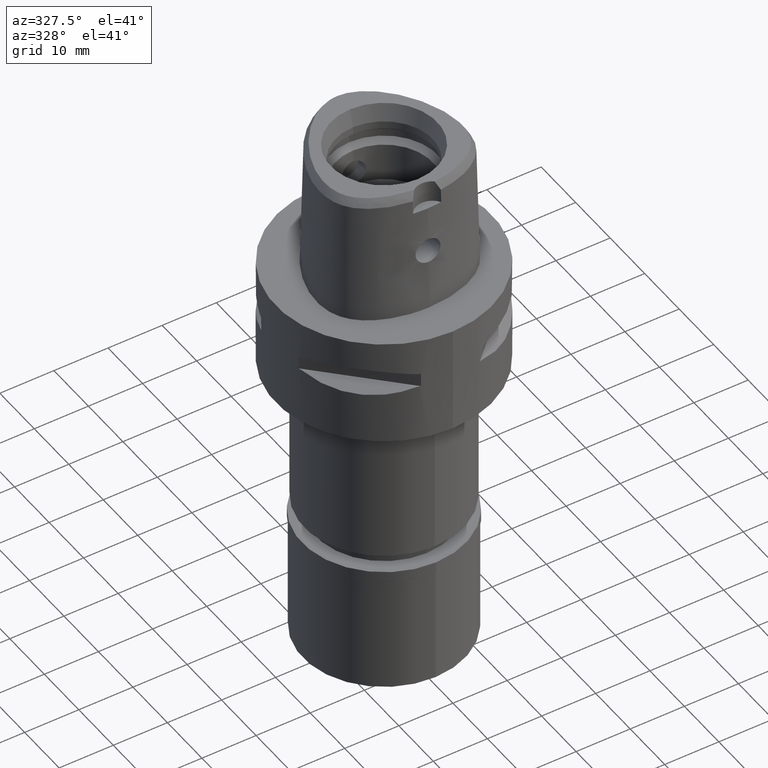
[diagram: clean part render]
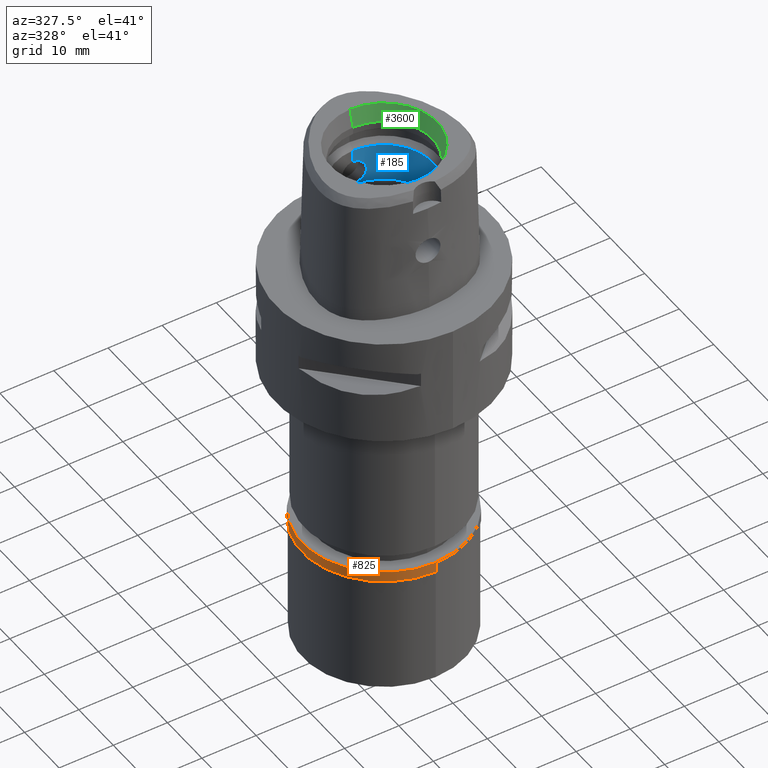
[diagram: same view with three faces highlighted in distinct colors, each labeled with its STEP entity id]
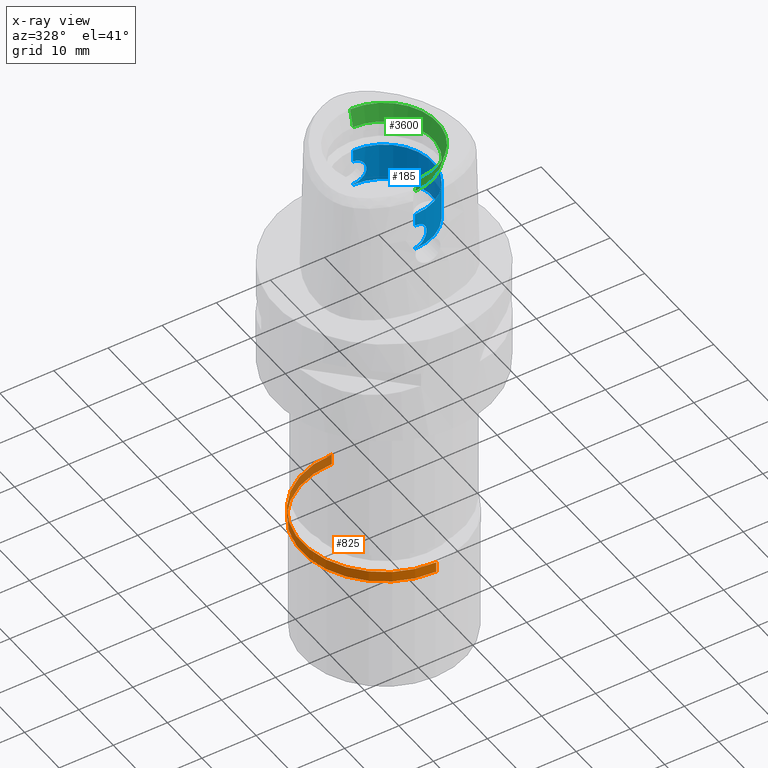
[diagram: x-ray of the same camera — body ghosted, the three highlighted faces saturated]
A machine part, auxiliary view with three faces highlighted in distinct colors.
The next image is the same camera in x-ray (body ghosted, the three faces saturated) — at least one of them is partly hidden behind the body in this view.
Their STEP definitions:

[orange] entity #825 — the highlighted cylindrical surface (partial cylindrical patch) has radius 15.15 mm, axis along (0, 0, -1).
#91 = CIRCLE ( 'NONE', #3687, 15.15000000000000036 ) ;
#99 = DIRECTION ( 'NONE',  ( 0.0000000000000000000, -1.000000000000000000, 0.0000000000000000000 ) ) ;
#107 = CARTESIAN_POINT ( 'NONE',  ( 0.0000000000000000000, 15.15000000000000036, -1.949999999999999956 ) ) ;
#140 = CARTESIAN_POINT ( 'NONE',  ( 0.0000000000000000000, -15.15000000000000036, 0.0000000000000000000 ) ) ;
#203 = DIRECTION ( 'NONE',  ( 0.0000000000000000000, 0.0000000000000000000, 1.000000000000000000 ) ) ;
#317 = LINE ( 'NONE', #3247, #1561 ) ;
#488 = CARTESIAN_POINT ( 'NONE',  ( 0.0000000000000000000, 0.0000000000000000000, -1.949999999999999956 ) ) ;
#546 = ORIENTED_EDGE ( 'NONE', *, *, #2425, .T. ) ;
#630 = CYLINDRICAL_SURFACE ( 'NONE', #3725, 15.15000000000000036 ) ;
#666 = ORIENTED_EDGE ( 'NONE', *, *, #735, .T. ) ;
#735 = EDGE_CURVE ( 'NONE', #4123, #1456, #3269, .T. ) ;
#825 = ADVANCED_FACE ( 'NONE', ( #2858 ), #630, .T. ) ;
#1070 = DIRECTION ( 'NONE',  ( 0.0000000000000000000, 0.0000000000000000000, -1.000000000000000000 ) ) ;
#1197 = EDGE_CURVE ( 'NONE', #1725, #4123, #1433, .T. ) ;
#1433 = LINE ( 'NONE', #2895, #3669 ) ;
#1450 = EDGE_LOOP ( 'NONE', ( #666, #3352, #546, #2197 ) ) ;
#1456 = VERTEX_POINT ( 'NONE', #2216 ) ;
#1537 = DIRECTION ( 'NONE',  ( 0.0000000000000000000, 0.0000000000000000000, -1.000000000000000000 ) ) ;
#1561 = VECTOR ( 'NONE', #1537, 1000.000000000000000 ) ;
#1725 = VERTEX_POINT ( 'NONE', #2698 ) ;
#2065 = DIRECTION ( 'NONE',  ( 0.0000000000000000000, -1.000000000000000000, 0.0000000000000000000 ) ) ;
#2197 = ORIENTED_EDGE ( 'NONE', *, *, #1197, .T. ) ;
#2216 = CARTESIAN_POINT ( 'NONE',  ( 0.0000000000000000000, -15.15000000000000036, -1.949999999999999956 ) ) ;
#2425 = EDGE_CURVE ( 'NONE', #3061, #1725, #91, .T. ) ;
#2698 = CARTESIAN_POINT ( 'NONE',  ( 0.0000000000000000000, 15.15000000000000036, 0.0000000000000000000 ) ) ;
#2858 = FACE_OUTER_BOUND ( 'NONE', #1450, .T. ) ;
#2895 = CARTESIAN_POINT ( 'NONE',  ( 0.0000000000000000000, 15.15000000000000036, 0.0000000000000000000 ) ) ;
#3061 = VERTEX_POINT ( 'NONE', #140 ) ;
#3080 = DIRECTION ( 'NONE',  ( 0.0000000000000000000, 1.000000000000000000, 0.0000000000000000000 ) ) ;
#3247 = CARTESIAN_POINT ( 'NONE',  ( 0.0000000000000000000, -15.15000000000000036, 0.0000000000000000000 ) ) ;
#3269 = CIRCLE ( 'NONE', #3649, 15.15000000000000036 ) ;
#3352 = ORIENTED_EDGE ( 'NONE', *, *, #3437, .F. ) ;
#3437 = EDGE_CURVE ( 'NONE', #3061, #1456, #317, .T. ) ;
#3597 = CARTESIAN_POINT ( 'NONE',  ( 0.0000000000000000000, 0.0000000000000000000, 0.0000000000000000000 ) ) ;
#3649 = AXIS2_PLACEMENT_3D ( 'NONE', #488, #203, #3080 ) ;
#3669 = VECTOR ( 'NONE', #1070, 1000.000000000000000 ) ;
#3687 = AXIS2_PLACEMENT_3D ( 'NONE', #4458, #4101, #99 ) ;
#3725 = AXIS2_PLACEMENT_3D ( 'NONE', #3597, #4273, #2065 ) ;
#4101 = DIRECTION ( 'NONE',  ( 0.0000000000000000000, 0.0000000000000000000, -1.000000000000000000 ) ) ;
#4123 = VERTEX_POINT ( 'NONE', #107 ) ;
#4273 = DIRECTION ( 'NONE',  ( 0.0000000000000000000, 0.0000000000000000000, -1.000000000000000000 ) ) ;
#4458 = CARTESIAN_POINT ( 'NONE',  ( 0.0000000000000000000, 0.0000000000000000000, 0.0000000000000000000 ) ) ;

[blue] entity #185 — the highlighted cylindrical surface (partial cylindrical patch) has radius 9 mm, axis along (0, 0, -1).
#3 = CARTESIAN_POINT ( 'NONE',  ( 2.287132990064632221, -8.704769236788072462, 11.21501786458138561 ) ) ;
#5 = ORIENTED_EDGE ( 'NONE', *, *, #4277, .T. ) ;
#49 = CARTESIAN_POINT ( 'NONE',  ( 0.9357169051279935479, -8.951185587024610868, 9.398812534362566140 ) ) ;
#67 = CARTESIAN_POINT ( 'NONE',  ( 0.0000000000000000000, 1.533257792532000136E-14, 25.19999999999999929 ) ) ;
#76 = CARTESIAN_POINT ( 'NONE',  ( 0.0000000000000000000, -9.000000000000000000, 13.79999999999999893 ) ) ;
#97 = CARTESIAN_POINT ( 'NONE',  ( 0.0000000000000000000, -9.000000000000000000, 9.199999999999999289 ) ) ;
#123 = CARTESIAN_POINT ( 'NONE',  ( 1.556137702457962790, 8.864439187158151157, 9.806195497710369580 ) ) ;
#127 = CARTESIAN_POINT ( 'NONE',  ( 1.339490234439705274, 8.899746063489176962, 13.36976547358360179 ) ) ;
#146 = CARTESIAN_POINT ( 'NONE',  ( 0.8374005472549581608, 8.960904913302332631, 9.357838374672851955 ) ) ;
#150 = CARTESIAN_POINT ( 'NONE',  ( 1.043225307877940766, 8.939340670437045944, 13.55015363775863690 ) ) ;
#170 = CARTESIAN_POINT ( 'NONE',  ( 1.255845283586865202, 8.911951536965279530, 9.573116896761840522 ) ) ;
#174 = CARTESIAN_POINT ( 'NONE',  ( 1.703395452306719626, 8.837626184156086140, 13.04870496503829713 ) ) ;
#185 = ADVANCED_FACE ( 'NONE', ( #2769 ), #1190, .F. ) ;
#193 = EDGE_CURVE ( 'NONE', #1169, #1746, #3055, .T. ) ;
#195 = CARTESIAN_POINT ( 'NONE',  ( 0.5806353631788452319, 8.981374052987712631, 9.273176414460557737 ) ) ;
#219 = ORIENTED_EDGE ( 'NONE', *, *, #3283, .F. ) ;
#220 = CARTESIAN_POINT ( 'NONE',  ( 2.245285359341062659, 8.715647387226118425, 12.00422526779594534 ) ) ;
#238 = CARTESIAN_POINT ( 'NONE',  ( 1.887477268085393289, 8.799866990472203554, 10.18556252931095685 ) ) ;
#243 = CARTESIAN_POINT ( 'NONE',  ( 0.0000000000000000000, -9.000000000000000000, 13.79999999999999893 ) ) ;
#268 = CARTESIAN_POINT ( 'NONE',  ( 1.490617208675725891, -8.875697753736783824, 13.25213021035993499 ) ) ;
#289 = CARTESIAN_POINT ( 'NONE',  ( 1.703357336630821006, -8.837633475453978704, 9.951254144140834867 ) ) ;
#309 = CARTESIAN_POINT ( 'NONE',  ( 1.562217327624282115, -8.863668096923680295, 9.808989366217517158 ) ) ;
#340 = CARTESIAN_POINT ( 'NONE',  ( 2.112927675227552093, -8.748515381573492178, 12.40863218411026736 ) ) ;
#360 = CARTESIAN_POINT ( 'NONE',  ( 2.072739825257189583, -8.758195903675449756, 10.50030056291258518 ) ) ;
#407 = CARTESIAN_POINT ( 'NONE',  ( 1.285286320555083517, -8.907758574497094628, 9.592628597585536099 ) ) ;
#448 = DIRECTION ( 'NONE',  ( 0.0000000000000000000, 0.0000000000000000000, 1.000000000000000000 ) ) ;
#506 = CARTESIAN_POINT ( 'NONE',  ( 2.300029124036677253, 8.701135784595216194, 11.63992761485882532 ) ) ;
#507 = CARTESIAN_POINT ( 'NONE',  ( 0.6909482788829833799, -8.973388700834629361, 13.69409681312240501 ) ) ;
#529 = CARTESIAN_POINT ( 'NONE',  ( 1.003437889925338888, -8.944085470636485624, 13.57094237662369274 ) ) ;
#561 = CARTESIAN_POINT ( 'NONE',  ( 0.0000000000000000000, -9.000000000000000000, 9.000000000000000000 ) ) ;
#577 = CARTESIAN_POINT ( 'NONE',  ( 1.103513926562659675, 8.932119617251970567, 9.481664286371652040 ) ) ;
#599 = CARTESIAN_POINT ( 'NONE',  ( 1.958507268155720293, 8.784433518659399809, 10.29123378001158606 ) ) ;
#626 = CARTESIAN_POINT ( 'NONE',  ( 1.919696485015929266, -8.792873908421162454, 10.23320296647237626 ) ) ;
#651 = CARTESIAN_POINT ( 'NONE',  ( 1.905885170425802855, -8.795876688207547645, 12.78748247549850170 ) ) ;
#672 = CARTESIAN_POINT ( 'NONE',  ( 2.153763615302764833, -8.738558560392213792, 10.69255182651608393 ) ) ;
#692 = CARTESIAN_POINT ( 'NONE',  ( 1.827585697699192213, -8.812600102160176974, 12.89691224378626799 ) ) ;
#703 = VERTEX_POINT ( 'NONE', #561 ) ;
#716 = CARTESIAN_POINT ( 'NONE',  ( 2.177169982511784507, -8.732798443225833651, 10.75664385977380988 ) ) ;
#787 = CARTESIAN_POINT ( 'NONE',  ( 1.144142947517637898, -8.927204976047894647, 9.503319663901351078 ) ) ;
#802 = DIRECTION ( 'NONE',  ( 0.0000000000000000000, -1.000000000000000000, 0.0000000000000000000 ) ) ;
#820 = CARTESIAN_POINT ( 'NONE',  ( 0.0000000000000000000, -9.000000000000000000, 9.199999999999999289 ) ) ;
#829 = CARTESIAN_POINT ( 'NONE',  ( 0.9931848985290840925, -8.945074307746335052, 9.424934585418821342 ) ) ;
#857 = CARTESIAN_POINT ( 'NONE',  ( 2.020546764137273854, 8.770310066920133707, 12.59945607755874164 ) ) ;
#881 = CARTESIAN_POINT ( 'NONE',  ( 0.8880796753691441170, 8.956014764074060608, 13.62165326822098521 ) ) ;
#882 = CARTESIAN_POINT ( 'NONE',  ( 0.7460393360806082397, -8.969064364720249927, 13.67625161466789585 ) ) ;
#902 = CARTESIAN_POINT ( 'NONE',  ( 0.0000000000000000000, 9.000000000000000000, 9.199999999999999289 ) ) ;
#905 = CARTESIAN_POINT ( 'NONE',  ( 1.291990342421216020, 8.906786232752297749, 13.40283267207491846 ) ) ;
#906 = CARTESIAN_POINT ( 'NONE',  ( 1.103590238054898753, -8.932110166292584807, 13.51829409849712960 ) ) ;
#934 = CARTESIAN_POINT ( 'NONE',  ( 2.177242703538515123, 8.732780537221536576, 12.24314351657900701 ) ) ;
#957 = CARTESIAN_POINT ( 'NONE',  ( 1.589988290054959563, 8.858448407607829367, 9.837930362928231531 ) ) ;
#960 = CARTESIAN_POINT ( 'NONE',  ( 2.102789545940028315, 8.750987946164515918, 12.43430839225484164 ) ) ;
#981 = CARTESIAN_POINT ( 'NONE',  ( 1.937531917454499153, -8.788966115894860209, 10.26058449488289881 ) ) ;
#983 = AXIS2_PLACEMENT_3D ( 'NONE', #1550, #448, #1905 ) ;
#1005 = CARTESIAN_POINT ( 'NONE',  ( 1.923653982155014486, -8.792009372543123646, 10.23921397070271233 ) ) ;
#1029 = CARTESIAN_POINT ( 'NONE',  ( 2.131785812865778507, -8.743929749607247004, 10.63654069758858967 ) ) ;
#1046 = B_SPLINE_CURVE_WITH_KNOTS ( 'NONE', 3,
 ( #902, #1219, #3116, #3138, #195, #1961, #4578, #3429, #146, #3046, #2779, #4531, #1296, #577, #2418, #4600, #3452, #170, #3834, #1606, #3068, #2033, #1319, #4243, #3091, #123, #957, #1580, #1245, #2729, #2684, #2707, #4191, #238, #1702, #3161, #2057, #3525, #599, #3140, #3071, #2328, #3867, #2783, #2349, #4603, #1984, #2007, #506, #1223, #220, #2420, #3412, #934, #1323, #4149, #2754, #4581, #960, #2732, #857, #2036, #3455, #1942, #4507, #1247, #4247, #3890, #1608, #3789, #174, #4219, #4534, #1679, #4194, #127, #1273, #1963, #905, #2687, #3119, #1299, #3432, #150, #1633, #3481, #2399, #4173, #881, #2710, #4557, #3050 ),
 .UNSPECIFIED., .F., .F.,
 ( 4, 2, 2, 1, 1, 2, 2, 2, 1, 1, 1, 2, 2, 2, 2, 2, 2, 2, 2, 1, 1, 2, 2, 2, 1, 1, 2, 2, 2, 2, 2, 1, 1, 2, 2, 2, 1, 1, 1, 2, 2, 2, 2, 2, 2, 1, 1, 2, 2, 2, 1, 1, 2, 2, 4 ),
 ( 0.0000000000000000000, 0.06249999999998009925, 0.09374999999997009337, 0.1093749999999649725, 0.1171874999999623773, 0.1210937499999611144, 0.1249999999999598377, 0.1562499999999507616, 0.1718749999999463207, 0.1796874999999439060, 0.1835937499999424627, 0.1855468749999419353, 0.1874999999999414357, 0.2187499999999362177, 0.2343749999999338307, 0.2421874999999326927, 0.2499999999999315548, 0.2812499999999280020, 0.2968749999999263922, 0.3046874999999256151, 0.3085937499999248379, 0.3105468749999245048, 0.3124999999999241163, 0.3437499999999235611, 0.3593749999999236167, 0.3671874999999239497, 0.3710937499999240607, 0.3749999999999242273, 0.4999999999999337197, 0.5624999999999389377, 0.5937499999999414912, 0.6093749999999430456, 0.6171874999999434896, 0.6210937499999433786, 0.6249999999999431566, 0.6562499999999440448, 0.6718749999999444888, 0.6796874999999444888, 0.6835937499999447109, 0.6855468749999449329, 0.6874999999999450440, 0.7187499999999477085, 0.7499999999999502620, 0.7812499999999528155, 0.7968749999999544809, 0.8046874999999554801, 0.8085937499999558131, 0.8105468749999559241, 0.8124999999999561462, 0.8437499999999629186, 0.8593749999999664713, 0.8671874999999684697, 0.8710937499999694689, 0.8749999999999703570, 1.000000000000000000 ),
 .UNSPECIFIED. ) ;
#1051 = CARTESIAN_POINT ( 'NONE',  ( 1.698461463642668257, -8.838602943485954100, 13.05437228606658273 ) ) ;
#1062 = B_SPLINE_CURVE_WITH_KNOTS ( 'NONE', 3,
 ( #243, #1248, #1706, #4628, #4150, #507, #882, #3433, #1964, #2350, #3813, #1274, #529, #906, #1751, #3264, #1727, #1074, #1438, #2518, #3938, #2544, #2130, #268, #1778, #2085, #3987, #4010, #1051, #4648, #692, #3189, #1368, #3914, #3643, #651, #1416, #2154, #3286, #4365, #3211, #3619, #3551, #340, #1803, #2900, #4718, #2877, #4667, #3, #4342, #3240, #2108, #716, #672, #2829, #2180, #1029, #4269, #360, #4291, #1823, #2807, #981, #2447, #1005, #626, #2473, #3570, #1392, #289, #309, #2853, #2496, #4693, #4318, #3963, #3593, #2923, #3308, #407, #3405, #787, #2568, #829, #49, #4390, #3667, #3692, #3330, #3022, #97 ),
 .UNSPECIFIED., .F., .F.,
 ( 4, 2, 2, 1, 1, 2, 2, 2, 1, 1, 1, 2, 2, 2, 2, 2, 2, 2, 2, 1, 1, 2, 2, 2, 1, 1, 2, 2, 2, 2, 2, 1, 1, 2, 2, 2, 1, 1, 1, 2, 2, 2, 2, 2, 2, 1, 1, 2, 2, 2, 1, 1, 2, 2, 4 ),
 ( 0.0000000000000000000, 0.06250000000000743849, 0.09375000000001114386, 0.1093750000000128786, 0.1171875000000137113, 0.1210937500000140166, 0.1250000000000143219, 0.1562500000000160150, 0.1718750000000166811, 0.1796875000000168199, 0.1835937500000170974, 0.1855468750000172085, 0.1875000000000172917, 0.2187500000000192069, 0.2343750000000204003, 0.2421875000000210387, 0.2500000000000217049, 0.2812500000000254796, 0.2968750000000270339, 0.3046875000000274225, 0.3085937500000280886, 0.3105468750000279776, 0.3125000000000278666, 0.3437500000000237033, 0.3593750000000219269, 0.3671875000000210942, 0.3710937500000206501, 0.3750000000000201505, 0.5000000000000091038, 0.5625000000000041078, 0.5937500000000015543, 0.6093750000000003331, 0.6171874999999994449, 0.6210937499999993339, 0.6249999999999992228, 0.6562499999999992228, 0.6718749999999992228, 0.6796874999999990008, 0.6835937499999985567, 0.6855468749999983347, 0.6874999999999981126, 0.7187499999999978906, 0.7499999999999977796, 0.7812499999999975575, 0.7968749999999973355, 0.8046874999999974465, 0.8085937499999974465, 0.8105468749999974465, 0.8124999999999974465, 0.8437499999999994449, 0.8593750000000003331, 0.8671875000000006661, 0.8710937500000007772, 0.8750000000000008882, 1.000000000000000000 ),
 .UNSPECIFIED. ) ;
#1074 = CARTESIAN_POINT ( 'NONE',  ( 1.255942053509135903, -8.911937898533313529, 13.42682003222394194 ) ) ;
#1134 = AXIS2_PLACEMENT_3D ( 'NONE', #67, #2636, #802 ) ;
#1162 = CARTESIAN_POINT ( 'NONE',  ( 0.0000000000000000000, 9.000000000000000000, 9.000000000000000000 ) ) ;
#1169 = VERTEX_POINT ( 'NONE', #2102 ) ;
#1172 = VECTOR ( 'NONE', #4157, 1000.000000000000000 ) ;
#1180 = VECTOR ( 'NONE', #3096, 1000.000000000000000 ) ;
#1190 = CYLINDRICAL_SURFACE ( 'NONE', #1134, 9.000000000000000000 ) ;
#1219 = CARTESIAN_POINT ( 'NONE',  ( 0.1414332686010233153, 8.999999999999998224, 9.199999999999995737 ) ) ;
#1223 = CARTESIAN_POINT ( 'NONE',  ( 2.287169262344413756, 8.704759722416335777, 11.78470094416381286 ) ) ;
#1245 = CARTESIAN_POINT ( 'NONE',  ( 1.698335872418372139, 8.838627239415616899, 9.945489560875191870 ) ) ;
#1247 = CARTESIAN_POINT ( 'NONE',  ( 1.923721292558522089, 8.791994767221938289, 12.76068332765383495 ) ) ;
#1248 = CARTESIAN_POINT ( 'NONE',  ( 0.1414394572719149812, -9.000000000000003553, 13.80000000000000249 ) ) ;
#1273 = CARTESIAN_POINT ( 'NONE',  ( 1.320804435486462092, 8.902557837978584132, 13.38303979007599054 ) ) ;
#1274 = CARTESIAN_POINT ( 'NONE',  ( 0.9377720271860214840, -8.951192132945880786, 13.60127452723740937 ) ) ;
#1296 = CARTESIAN_POINT ( 'NONE',  ( 1.003375303522020312, 8.944092505824571049, 9.429027726795055742 ) ) ;
#1299 = CARTESIAN_POINT ( 'NONE',  ( 1.212468344400696507, 8.918232905176987302, 13.45620263016217244 ) ) ;
#1319 = CARTESIAN_POINT ( 'NONE',  ( 1.459165974735790128, 8.880900083959863522, 9.721721923061821258 ) ) ;
#1323 = CARTESIAN_POINT ( 'NONE',  ( 2.153839850532570210, 8.738540012296835968, 12.30724488745274314 ) ) ;
#1368 = CARTESIAN_POINT ( 'NONE',  ( 1.875102035805660039, -8.802528531856413707, 12.83200180528761081 ) ) ;
#1392 = CARTESIAN_POINT ( 'NONE',  ( 1.762349335927701821, -8.825982146228179559, 10.02019725376149140 ) ) ;
#1416 = CARTESIAN_POINT ( 'NONE',  ( 1.909312241721613512, -8.795131996938511776, 12.78239470178909443 ) ) ;
#1438 = CARTESIAN_POINT ( 'NONE',  ( 1.264453099398634262, -8.910734439179687882, 13.42124549128251410 ) ) ;
#1504 = ORIENTED_EDGE ( 'NONE', *, *, #2971, .T. ) ;
#1513 = CARTESIAN_POINT ( 'NONE',  ( 0.0000000000000000000, -9.000000000000000000, 13.79999999999999893 ) ) ;
#1550 = CARTESIAN_POINT ( 'NONE',  ( 0.0000000000000000000, 1.427938167806000271E-14, 16.10000000000000142 ) ) ;
#1580 = CARTESIAN_POINT ( 'NONE',  ( 1.606180430752902621, 8.855537364755658558, 9.853530325538274681 ) ) ;
#1593 = DIRECTION ( 'NONE',  ( 0.0000000000000000000, 0.0000000000000000000, 1.000000000000000000 ) ) ;
#1606 = CARTESIAN_POINT ( 'NONE',  ( 1.270096494061585313, 8.909931030217613568, 9.582484427444571295 ) ) ;
#1608 = CARTESIAN_POINT ( 'NONE',  ( 1.855587326000626591, 8.806834445933052535, 12.86106174105149513 ) ) ;
#1633 = CARTESIAN_POINT ( 'NONE',  ( 0.9931669881046227832, 8.945076297695257139, 13.57507403465581142 ) ) ;
#1639 = EDGE_CURVE ( 'NONE', #2123, #2416, #4445, .T. ) ;
#1679 = CARTESIAN_POINT ( 'NONE',  ( 1.406369887744473024, 8.889417872726765424, 13.32032241180387722 ) ) ;
#1702 = CARTESIAN_POINT ( 'NONE',  ( 1.900487608784264815, 8.797048592149586455, 10.20453997196187856 ) ) ;
#1706 = CARTESIAN_POINT ( 'NONE',  ( 0.2869275326283063920, -8.996451826777951410, 13.78691779590542943 ) ) ;
#1727 = CARTESIAN_POINT ( 'NONE',  ( 1.243178911795196795, -8.913732811697506975, 13.43511907350839074 ) ) ;
#1746 = VERTEX_POINT ( 'NONE', #3492 ) ;
#1751 = CARTESIAN_POINT ( 'NONE',  ( 1.154075757097644539, -8.925793686400686155, 13.49018298282967265 ) ) ;
#1778 = CARTESIAN_POINT ( 'NONE',  ( 1.539604599951793995, -8.867313454296095188, 13.20882786143640431 ) ) ;
#1803 = CARTESIAN_POINT ( 'NONE',  ( 2.119746319327764361, -8.746865041111790973, 12.39260929215413043 ) ) ;
#1823 = CARTESIAN_POINT ( 'NONE',  ( 1.992508994345695728, -8.776729813503461486, 10.34994354242991399 ) ) ;
#1848 = VECTOR ( 'NONE', #1593, 1000.000000000000000 ) ;
#1897 = DIRECTION ( 'NONE',  ( 0.0000000000000000000, 0.0000000000000000000, -1.000000000000000000 ) ) ;
#1905 = DIRECTION ( 'NONE',  ( 0.0000000000000000000, -1.000000000000000000, 0.0000000000000000000 ) ) ;
#1932 = VERTEX_POINT ( 'NONE', #820 ) ;
#1942 = CARTESIAN_POINT ( 'NONE',  ( 1.937600561039689806, 8.788951117061536422, 12.73930821688134074 ) ) ;
#1961 = CARTESIAN_POINT ( 'NONE',  ( 0.6909134741020581671, 8.973391504268159125, 9.305892266130404877 ) ) ;
#1963 = CARTESIAN_POINT ( 'NONE',  ( 1.300417651653735351, 8.905559522219668622, 13.39710207156761435 ) ) ;
#1964 = CARTESIAN_POINT ( 'NONE',  ( 0.8374433756606519674, -8.960900794299208272, 13.64214488543472825 ) ) ;
#1984 = CARTESIAN_POINT ( 'NONE',  ( 2.247181623742872336, 8.715881470142798904, 10.91623456125771341 ) ) ;
#2007 = CARTESIAN_POINT ( 'NONE',  ( 2.299941602979093336, 8.701167487288063995, 11.21871107708622795 ) ) ;
#2033 = CARTESIAN_POINT ( 'NONE',  ( 1.370034635968938597, 8.895244962172609959, 9.651011590293784081 ) ) ;
#2034 = ORIENTED_EDGE ( 'NONE', *, *, #3807, .F. ) ;
#2036 = CARTESIAN_POINT ( 'NONE',  ( 1.992582494425632067, 8.776713322919977855, 12.64992954828725580 ) ) ;
#2057 = CARTESIAN_POINT ( 'NONE',  ( 1.909158358357111007, 8.795165259540548064, 10.21737622222637931 ) ) ;
#2085 = CARTESIAN_POINT ( 'NONE',  ( 1.556258811771126460, -8.864417823802344998, 13.19369334312456488 ) ) ;
#2102 = CARTESIAN_POINT ( 'NONE',  ( 0.0000000000000000000, -9.000000000000000000, 16.10000000000000142 ) ) ;
#2108 = CARTESIAN_POINT ( 'NONE',  ( 2.194942066035532324, -8.728372154003007921, 10.81174319377279325 ) ) ;
#2123 = VERTEX_POINT ( 'NONE', #4087 ) ;
#2130 = CARTESIAN_POINT ( 'NONE',  ( 1.459263900345196818, -8.880883830643142574, 13.27819786446664629 ) ) ;
#2154 = CARTESIAN_POINT ( 'NONE',  ( 1.909754891091663076, -8.795035831871812704, 12.78174220572022257 ) ) ;
#2180 = CARTESIAN_POINT ( 'NONE',  ( 2.135951545452911216, -8.742914213659682687, 10.64688376812441639 ) ) ;
#2223 = VECTOR ( 'NONE', #3753, 1000.000000000000000 ) ;
#2265 = LINE ( 'NONE', #4470, #1848 ) ;
#2283 = CARTESIAN_POINT ( 'NONE',  ( 0.0000000000000000000, 1.533257792532000136E-14, 9.000000000000000000 ) ) ;
#2328 = CARTESIAN_POINT ( 'NONE',  ( 2.076588996256092390, 8.757239265836171072, 10.51002628681138695 ) ) ;
#2349 = CARTESIAN_POINT ( 'NONE',  ( 2.119618309044795090, 8.746895874843161778, 10.60708678664825655 ) ) ;
#2350 = CARTESIAN_POINT ( 'NONE',  ( 0.8556747885966007328, -8.959182147894775738, 13.63492781465608594 ) ) ;
#2399 = CARTESIAN_POINT ( 'NONE',  ( 0.9112882096314763869, 8.953682610253693497, 13.61178397668112794 ) ) ;
#2416 = VERTEX_POINT ( 'NONE', #4270 ) ;
#2418 = CARTESIAN_POINT ( 'NONE',  ( 1.153992557307253364, 8.925804429162466747, 9.509768992773125262 ) ) ;
#2420 = CARTESIAN_POINT ( 'NONE',  ( 2.227564533388770140, 8.720185235175739180, 12.07778027841114543 ) ) ;
#2447 = CARTESIAN_POINT ( 'NONE',  ( 1.929231123482783472, -8.790787858489757411, 10.24776466791684371 ) ) ;
#2473 = CARTESIAN_POINT ( 'NONE',  ( 1.891056123125643751, -8.799121521649569289, 10.18992659143200719 ) ) ;
#2496 = CARTESIAN_POINT ( 'NONE',  ( 1.406369410364366912, -8.889418038753191809, 9.679677300357578673 ) ) ;
#2518 = CARTESIAN_POINT ( 'NONE',  ( 1.270196262761217110, -8.909916803539294605, 13.41744948405163385 ) ) ;
#2544 = CARTESIAN_POINT ( 'NONE',  ( 1.370120279165543353, -8.895231693199926681, 13.34892550547526824 ) ) ;
#2555 = CARTESIAN_POINT ( 'NONE',  ( 0.0000000000000000000, 9.000000000000000000, 13.79999999999999893 ) ) ;
#2568 = CARTESIAN_POINT ( 'NONE',  ( 1.043240921633357354, -8.939338849852418889, 9.449854336477789829 ) ) ;
#2624 = EDGE_CURVE ( 'NONE', #2416, #3983, #1046, .T. ) ;
#2636 = DIRECTION ( 'NONE',  ( 0.0000000000000000000, 0.0000000000000000000, -1.000000000000000000 ) ) ;
#2684 = CARTESIAN_POINT ( 'NONE',  ( 1.827460236549606654, 8.812626075039752038, 10.10292381223931457 ) ) ;
#2687 = CARTESIAN_POINT ( 'NONE',  ( 1.286441757552266640, 8.907590767425009659, 13.40658826893781530 ) ) ;
#2707 = CARTESIAN_POINT ( 'NONE',  ( 1.848006702733273832, 8.808305489373799091, 10.13039560120808069 ) ) ;
#2710 = CARTESIAN_POINT ( 'NONE',  ( 0.5860359053465807877, 8.985637473983365098, 13.74655662798850386 ) ) ;
#2729 = CARTESIAN_POINT ( 'NONE',  ( 1.757017329386306281, 8.827053910719637742, 10.01385691585644189 ) ) ;
#2732 = CARTESIAN_POINT ( 'NONE',  ( 2.072818420315191368, 8.758177576890625815, 12.49953757637614338 ) ) ;
#2754 = CARTESIAN_POINT ( 'NONE',  ( 2.136030091705748202, 8.742895276938142501, 12.35291956114458678 ) ) ;
#2769 = FACE_OUTER_BOUND ( 'NONE', #3755, .T. ) ;
#2779 = CARTESIAN_POINT ( 'NONE',  ( 0.8658490705494147344, 8.958204985007961696, 9.369183275700448732 ) ) ;
#2783 = CARTESIAN_POINT ( 'NONE',  ( 2.112798462836298796, 8.748546398407565761, 10.59106741831276821 ) ) ;
#2801 = ORIENTED_EDGE ( 'NONE', *, *, #1639, .F. ) ;
#2807 = CARTESIAN_POINT ( 'NONE',  ( 1.956449488884028698, -8.784789082569563590, 10.29044883033721192 ) ) ;
#2829 = CARTESIAN_POINT ( 'NONE',  ( 2.143153871539270838, -8.741154920550608054, 10.66514205249126057 ) ) ;
#2853 = CARTESIAN_POINT ( 'NONE',  ( 1.495589781560957343, -8.874987073906625668, 9.750997483632788843 ) ) ;
#2877 = CARTESIAN_POINT ( 'NONE',  ( 2.299981337334068510, -8.701156898423365149, 11.78092062215292479 ) ) ;
#2900 = CARTESIAN_POINT ( 'NONE',  ( 2.122587336487926635, -8.746175957753088426, 12.38584492948103666 ) ) ;
#2923 = CARTESIAN_POINT ( 'NONE',  ( 1.291995762142870596, -8.906785481062165388, 9.597171007840326951 ) ) ;
#2971 = EDGE_CURVE ( 'NONE', #703, #1932, #3732, .T. ) ;
#3022 = CARTESIAN_POINT ( 'NONE',  ( 0.2843015803233493455, -9.000000000000000000, 9.199999999999993960 ) ) ;
#3046 = CARTESIAN_POINT ( 'NONE',  ( 0.8556309621365913998, 8.959186447952982135, 9.365054623134268397 ) ) ;
#3050 = CARTESIAN_POINT ( 'NONE',  ( 0.0000000000000000000, 9.000000000000000000, 13.79999999999999893 ) ) ;
#3055 = CIRCLE ( 'NONE', #983, 9.000000000000000000 ) ;
#3068 = CARTESIAN_POINT ( 'NONE',  ( 1.317217964244299599, 8.903196009675236056, 9.613794260686676196 ) ) ;
#3071 = CARTESIAN_POINT ( 'NONE',  ( 2.051916477496537272, 8.763042932542150609, 10.46025211646040276 ) ) ;
#3091 = CARTESIAN_POINT ( 'NONE',  ( 1.539488032283160557, 8.867333814143357529, 9.791067207309060549 ) ) ;
#3096 = DIRECTION ( 'NONE',  ( 0.0000000000000000000, 0.0000000000000000000, 1.000000000000000000 ) ) ;
#3116 = CARTESIAN_POINT ( 'NONE',  ( 0.2869141885195998221, 8.996452200569088120, 9.213081057490438042 ) ) ;
#3119 = CARTESIAN_POINT ( 'NONE',  ( 1.285281078709474389, 8.907759299098975347, 13.40737493516792611 ) ) ;
#3138 = CARTESIAN_POINT ( 'NONE',  ( 0.5069837168918974735, 8.985808802276348928, 9.255329197609986736 ) ) ;
#3140 = CARTESIAN_POINT ( 'NONE',  ( 1.998850508335805243, 8.775331942764323045, 10.35967363745584535 ) ) ;
#3161 = CARTESIAN_POINT ( 'NONE',  ( 1.905733410241329695, 8.795909429592402518, 10.21229290532162004 ) ) ;
#3189 = CARTESIAN_POINT ( 'NONE',  ( 1.848135793157161588, -8.808278489002756118, 12.86943050423861301 ) ) ;
#3211 = CARTESIAN_POINT ( 'NONE',  ( 2.052055239407357679, -8.763010618495089332, 12.53947415188635084 ) ) ;
#3240 = CARTESIAN_POINT ( 'NONE',  ( 2.227502726613816986, -8.720200847640876773, 10.92198268087398816 ) ) ;
#3264 = CARTESIAN_POINT ( 'NONE',  ( 1.213427018949130076, -8.917849011350220678, 13.45404718017294599 ) ) ;
#3283 = EDGE_CURVE ( 'NONE', #3983, #1746, #2265, .T. ) ;
#3286 = CARTESIAN_POINT ( 'NONE',  ( 1.958658137129233090, -8.784400007182775028, 12.70852213507424899 ) ) ;
#3288 = ORIENTED_EDGE ( 'NONE', *, *, #3690, .T. ) ;
#3308 = CARTESIAN_POINT ( 'NONE',  ( 1.286447194632147628, -8.907590014492940966, 9.593415399668399957 ) ) ;
#3330 = CARTESIAN_POINT ( 'NONE',  ( 0.5860517842155987811, -8.985636713597717318, 9.253446164851492739 ) ) ;
#3334 = LINE ( 'NONE', #1513, #1180 ) ;
#3404 = AXIS2_PLACEMENT_3D ( 'NONE', #2283, #1897, #4514 ) ;
#3405 = CARTESIAN_POINT ( 'NONE',  ( 1.212476518509925771, -8.918231782822617859, 9.543802569772768862 ) ) ;
#3412 = CARTESIAN_POINT ( 'NONE',  ( 2.195011345457409835, 8.728354946619683474, 12.18803607714010262 ) ) ;
#3429 = CARTESIAN_POINT ( 'NONE',  ( 0.8100290769530342772, 8.963441035551772629, 9.347205996366103165 ) ) ;
#3432 = CARTESIAN_POINT ( 'NONE',  ( 1.144131854875213072, 8.927206413343059310, 13.49668681177288043 ) ) ;
#3433 = CARTESIAN_POINT ( 'NONE',  ( 0.8100704059797528833, -8.963437183750905035, 13.65277847172348658 ) ) ;
#3452 = CARTESIAN_POINT ( 'NONE',  ( 1.243083819570944826, 8.913746072108503782, 9.564819854878873429 ) ) ;
#3455 = CARTESIAN_POINT ( 'NONE',  ( 1.956519884687466737, 8.784773557477041805, 12.70943740373712494 ) ) ;
#3481 = CARTESIAN_POINT ( 'NONE',  ( 0.9356962697298399911, 8.951187735574468007, 13.60119666654054349 ) ) ;
#3492 = CARTESIAN_POINT ( 'NONE',  ( 0.0000000000000000000, 9.000000000000000000, 16.10000000000000142 ) ) ;
#3525 = CARTESIAN_POINT ( 'NONE',  ( 1.909598478103638808, 8.795069651862396753, 10.21802477611052495 ) ) ;
#3551 = CARTESIAN_POINT ( 'NONE',  ( 2.102498546559115500, -8.751033502592242996, 12.43276044540055558 ) ) ;
#3570 = CARTESIAN_POINT ( 'NONE',  ( 1.855533357072294720, -8.806845689192451587, 10.13886543265851792 ) ) ;
#3593 = CARTESIAN_POINT ( 'NONE',  ( 1.300423005348526395, -8.905558778567350231, 9.602901598661839344 ) ) ;
#3619 = CARTESIAN_POINT ( 'NONE',  ( 2.076724185673457956, -8.757207390586033924, 12.48969041016872339 ) ) ;
#3643 = CARTESIAN_POINT ( 'NONE',  ( 1.900636264600524594, -8.797016614567032988, 12.79524195777758422 ) ) ;
#3667 = CARTESIAN_POINT ( 'NONE',  ( 0.8950906211832849735, -8.955315988878190581, 9.381299799826534169 ) ) ;
#3690 = EDGE_CURVE ( 'NONE', #4505, #1169, #3334, .T. ) ;
#3692 = CARTESIAN_POINT ( 'NONE',  ( 0.8881032946498235159, -8.956012435393013504, 9.378356617074992130 ) ) ;
#3732 = LINE ( 'NONE', #4522, #2223 ) ;
#3753 = DIRECTION ( 'NONE',  ( 0.0000000000000000000, -4.440892098500999766E-14, 1.000000000000000000 ) ) ;
#3755 = EDGE_LOOP ( 'NONE', ( #2801, #5, #1504, #2034, #3288, #3831, #219, #4004 ) ) ;
#3789 = CARTESIAN_POINT ( 'NONE',  ( 1.762390603347717022, 8.825973970981770833, 12.97975428656245001 ) ) ;
#3807 = EDGE_CURVE ( 'NONE', #4505, #1932, #1062, .T. ) ;
#3813 = CARTESIAN_POINT ( 'NONE',  ( 0.8658928064187624285, -8.958200644884090735, 13.63079895693674004 ) ) ;
#3831 = ORIENTED_EDGE ( 'NONE', *, *, #193, .T. ) ;
#3834 = CARTESIAN_POINT ( 'NONE',  ( 1.264355213506151099, 8.910748331373888220, 9.578690091647903415 ) ) ;
#3867 = CARTESIAN_POINT ( 'NONE',  ( 2.102367534965273066, 8.751064788554804963, 10.56694439147382347 ) ) ;
#3870 = CIRCLE ( 'NONE', #3404, 9.000000000000000000 ) ;
#3890 = CARTESIAN_POINT ( 'NONE',  ( 1.891116338069076530, 8.799108700286149443, 12.80998707246282642 ) ) ;
#3914 = CARTESIAN_POINT ( 'NONE',  ( 1.887619245195756967, -8.799836668930689498, 12.81423372912009739 ) ) ;
#3938 = CARTESIAN_POINT ( 'NONE',  ( 1.317304631171059670, -8.903183110688065227, 13.38614484683447969 ) ) ;
#3963 = CARTESIAN_POINT ( 'NONE',  ( 1.320809357731732803, -8.902557156305514141, 9.616963667242066194 ) ) ;
#3983 = VERTEX_POINT ( 'NONE', #2555 ) ;
#3987 = CARTESIAN_POINT ( 'NONE',  ( 1.590119237697013022, -8.858424834787788527, 13.16194447550620339 ) ) ;
#4004 = ORIENTED_EDGE ( 'NONE', *, *, #2624, .F. ) ;
#4010 = CARTESIAN_POINT ( 'NONE',  ( 1.606326325622631446, -8.855510831294342466, 13.14632728210701806 ) ) ;
#4087 = CARTESIAN_POINT ( 'NONE',  ( 0.0000000000000000000, 9.000000000000000000, 9.000000000000000000 ) ) ;
#4149 = CARTESIAN_POINT ( 'NONE',  ( 2.143231507327520102, 8.741136134337622821, 12.33465863468494561 ) ) ;
#4150 = CARTESIAN_POINT ( 'NONE',  ( 0.5806641694347726146, -8.981372090584237355, 13.72681622953389713 ) ) ;
#4157 = DIRECTION ( 'NONE',  ( 0.0000000000000000000, -2.664535259099999884E-14, 1.000000000000000000 ) ) ;
#4173 = CARTESIAN_POINT ( 'NONE',  ( 0.8950680243305619843, 8.955318234932443389, 13.61870974817256830 ) ) ;
#4191 = CARTESIAN_POINT ( 'NONE',  ( 1.874964805645515931, 8.802557650215897311, 10.16780511064447268 ) ) ;
#4194 = CARTESIAN_POINT ( 'NONE',  ( 1.378391531348218013, 8.893803978133346888, 13.34148441312061983 ) ) ;
#4219 = CARTESIAN_POINT ( 'NONE',  ( 1.562235469911456898, 8.863664909169623130, 13.19099481732618706 ) ) ;
#4243 = CARTESIAN_POINT ( 'NONE',  ( 1.490512913717679577, 8.875715406729140611, 9.747781400637778759 ) ) ;
#4247 = CARTESIAN_POINT ( 'NONE',  ( 1.919763650786772580, 8.792859363468609857, 12.76669524742952611 ) ) ;
#4269 = CARTESIAN_POINT ( 'NONE',  ( 2.102710029780534118, -8.751006779607866548, 10.56551375746719401 ) ) ;
#4270 = CARTESIAN_POINT ( 'NONE',  ( 0.0000000000000000000, 9.000000000000000000, 9.199999999999999289 ) ) ;
#4277 = EDGE_CURVE ( 'NONE', #2123, #703, #3870, .T. ) ;
#4291 = CARTESIAN_POINT ( 'NONE',  ( 2.020471278392933279, -8.770327235877369176, 10.40040546103609032 ) ) ;
#4318 = CARTESIAN_POINT ( 'NONE',  ( 1.339494320524102333, -8.899745509040080549, 9.630237461491550022 ) ) ;
#4342 = CARTESIAN_POINT ( 'NONE',  ( 2.245229321238683795, -8.715661672844156271, 10.99552668258121457 ) ) ;
#4365 = CARTESIAN_POINT ( 'NONE',  ( 1.998996482008349229, -8.775298839532368333, 12.64007102278515937 ) ) ;
#4390 = CARTESIAN_POINT ( 'NONE',  ( 0.9113100209371925997, -8.953680402087176304, 9.388225437201025869 ) ) ;
#4445 = LINE ( 'NONE', #1162, #1172 ) ;
#4470 = CARTESIAN_POINT ( 'NONE',  ( 0.0000000000000000000, 9.000000000000000000, 13.79999999999999893 ) ) ;
#4505 = VERTEX_POINT ( 'NONE', #76 ) ;
#4507 = CARTESIAN_POINT ( 'NONE',  ( 1.929298972935273637, 8.790773094520465847, 12.75213079871805277 ) ) ;
#4514 = DIRECTION ( 'NONE',  ( 0.0000000000000000000, 1.000000000000000000, 0.0000000000000000000 ) ) ;
#4522 = CARTESIAN_POINT ( 'NONE',  ( 0.0000000000000000000, -9.000000000000000000, 9.000000000000000000 ) ) ;
#4531 = CARTESIAN_POINT ( 'NONE',  ( 0.9377185160918205531, 8.951197781397750575, 9.398701920659512155 ) ) ;
#4534 = CARTESIAN_POINT ( 'NONE',  ( 1.495599194039390234, 8.874985410998942115, 13.24899480475735203 ) ) ;
#4557 = CARTESIAN_POINT ( 'NONE',  ( 0.2842942744820479706, 9.000000000000001776, 13.79999999999999893 ) ) ;
#4578 = CARTESIAN_POINT ( 'NONE',  ( 0.7460015172923855076, 8.969067623711731940, 9.323735495540306673 ) ) ;
#4581 = CARTESIAN_POINT ( 'NONE',  ( 2.131865223053762026, 8.743910644552919109, 12.36326323995534437 ) ) ;
#4600 = CARTESIAN_POINT ( 'NONE',  ( 1.213335865199167474, 8.917861408069093443, 9.545896276749537890 ) ) ;
#4603 = CARTESIAN_POINT ( 'NONE',  ( 2.122459029636948102, 8.746206908764923682, 10.61384768980402171 ) ) ;
#4628 = CARTESIAN_POINT ( 'NONE',  ( 0.5070085645916682093, -8.985807307111802089, 13.74466532449338274 ) ) ;
#4648 = CARTESIAN_POINT ( 'NONE',  ( 1.757138021483931833, -8.827029866811990644, 12.98600106680781430 ) ) ;
#4667 = CARTESIAN_POINT ( 'NONE',  ( 2.300009323715587417, -8.701141063862808167, 11.35976894840899654 ) ) ;
#4693 = CARTESIAN_POINT ( 'NONE',  ( 1.378393353956243628, -8.893803776930733207, 9.658516982898619929 ) ) ;
#4718 = CARTESIAN_POINT ( 'NONE',  ( 2.247260332177354325, -8.715860614118819072, 12.08345425540096763 ) ) ;

[green] entity #3600 — the highlighted conical surface has half-angle 15 deg.
#103 = DIRECTION ( 'NONE',  ( 0.0000000000000000000, 0.0000000000000000000, 1.000000000000000000 ) ) ;
#288 = EDGE_CURVE ( 'NONE', #1892, #2212, #4357, .T. ) ;
#347 = DIRECTION ( 'NONE',  ( 0.0000000000000000000, -0.2588190451024934280, 0.9659258262890755287 ) ) ;
#509 = DIRECTION ( 'NONE',  ( 0.0000000000000000000, -1.000000000000000000, 0.0000000000000000000 ) ) ;
#521 = AXIS2_PLACEMENT_3D ( 'NONE', #2316, #4137, #1623 ) ;
#753 = ORIENTED_EDGE ( 'NONE', *, *, #3899, .T. ) ;
#792 = AXIS2_PLACEMENT_3D ( 'NONE', #3718, #103, #3315 ) ;
#796 = VECTOR ( 'NONE', #2261, 1000.000000000000227 ) ;
#861 = CARTESIAN_POINT ( 'NONE',  ( 0.0000000000000000000, 9.000000000000000000, 20.89999999999999858 ) ) ;
#926 = AXIS2_PLACEMENT_3D ( 'NONE', #3415, #1588, #509 ) ;
#947 = CONICAL_SURFACE ( 'NONE', #792, 9.415321248268000431, 0.2617993877991000029 ) ;
#1085 = LINE ( 'NONE', #4419, #3862 ) ;
#1494 = FACE_OUTER_BOUND ( 'NONE', #2541, .T. ) ;
#1542 = CIRCLE ( 'NONE', #926, 9.830642496535999086 ) ;
#1588 = DIRECTION ( 'NONE',  ( 0.0000000000000000000, 0.0000000000000000000, 1.000000000000000000 ) ) ;
#1623 = DIRECTION ( 'NONE',  ( 0.0000000000000000000, -1.000000000000000000, 0.0000000000000000000 ) ) ;
#1892 = VERTEX_POINT ( 'NONE', #3750 ) ;
#2212 = VERTEX_POINT ( 'NONE', #3075 ) ;
#2221 = EDGE_CURVE ( 'NONE', #4447, #4328, #1542, .T. ) ;
#2261 = DIRECTION ( 'NONE',  ( 0.0000000000000000000, 0.2588190451024934280, 0.9659258262890755287 ) ) ;
#2316 = CARTESIAN_POINT ( 'NONE',  ( 0.0000000000000000000, 1.499580005555999857E-14, 20.89999999999999858 ) ) ;
#2325 = ORIENTED_EDGE ( 'NONE', *, *, #2221, .T. ) ;
#2541 = EDGE_LOOP ( 'NONE', ( #3344, #2974, #753, #2325 ) ) ;
#2974 = ORIENTED_EDGE ( 'NONE', *, *, #288, .F. ) ;
#3075 = CARTESIAN_POINT ( 'NONE',  ( 0.0000000000000000000, 9.000000000000000000, 20.89999999999999858 ) ) ;
#3250 = LINE ( 'NONE', #861, #796 ) ;
#3315 = DIRECTION ( 'NONE',  ( 0.0000000000000000000, 1.000000000000000000, 0.0000000000000000000 ) ) ;
#3333 = CARTESIAN_POINT ( 'NONE',  ( 0.0000000000000000000, -9.830642496535999086, 24.00000000000000000 ) ) ;
#3344 = ORIENTED_EDGE ( 'NONE', *, *, #4036, .F. ) ;
#3415 = CARTESIAN_POINT ( 'NONE',  ( 0.0000000000000000000, 1.499580005555999857E-14, 24.00000000000000000 ) ) ;
#3600 = ADVANCED_FACE ( 'NONE', ( #1494 ), #947, .F. ) ;
#3718 = CARTESIAN_POINT ( 'NONE',  ( 0.0000000000000000000, 1.499580005555999857E-14, 22.45000000000000284 ) ) ;
#3750 = CARTESIAN_POINT ( 'NONE',  ( 0.0000000000000000000, -9.000000000000000000, 20.89999999999999858 ) ) ;
#3862 = VECTOR ( 'NONE', #347, 1000.000000000000227 ) ;
#3899 = EDGE_CURVE ( 'NONE', #1892, #4447, #1085, .T. ) ;
#4036 = EDGE_CURVE ( 'NONE', #2212, #4328, #3250, .T. ) ;
#4137 = DIRECTION ( 'NONE',  ( 0.0000000000000000000, 0.0000000000000000000, 1.000000000000000000 ) ) ;
#4328 = VERTEX_POINT ( 'NONE', #4697 ) ;
#4357 = CIRCLE ( 'NONE', #521, 9.000000000000000000 ) ;
#4419 = CARTESIAN_POINT ( 'NONE',  ( 0.0000000000000000000, -9.000000000000000000, 20.89999999999999858 ) ) ;
#4447 = VERTEX_POINT ( 'NONE', #3333 ) ;
#4697 = CARTESIAN_POINT ( 'NONE',  ( 0.0000000000000000000, 9.830642496535999086, 24.00000000000000000 ) ) ;